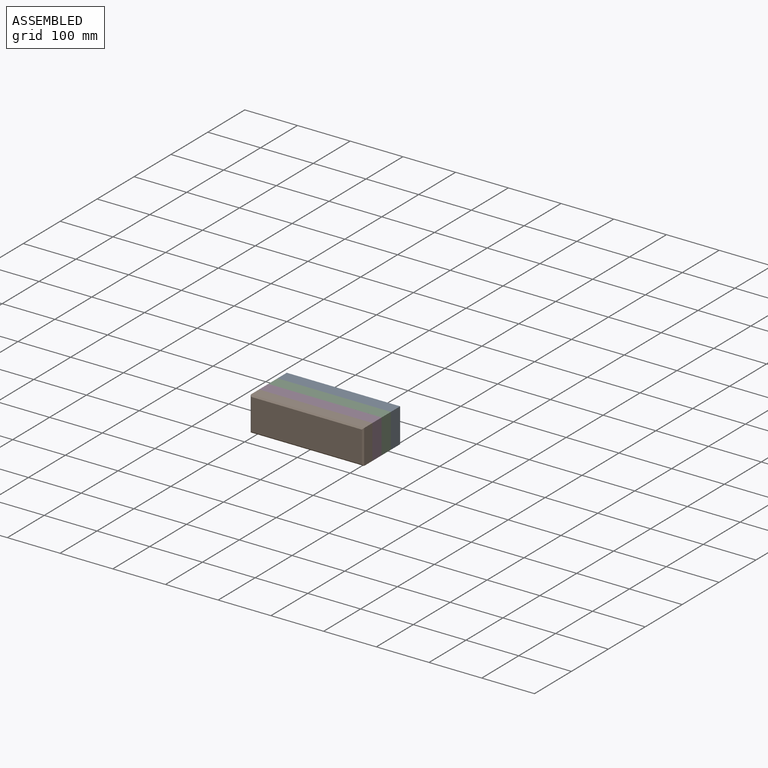
[diagram: assembled view]
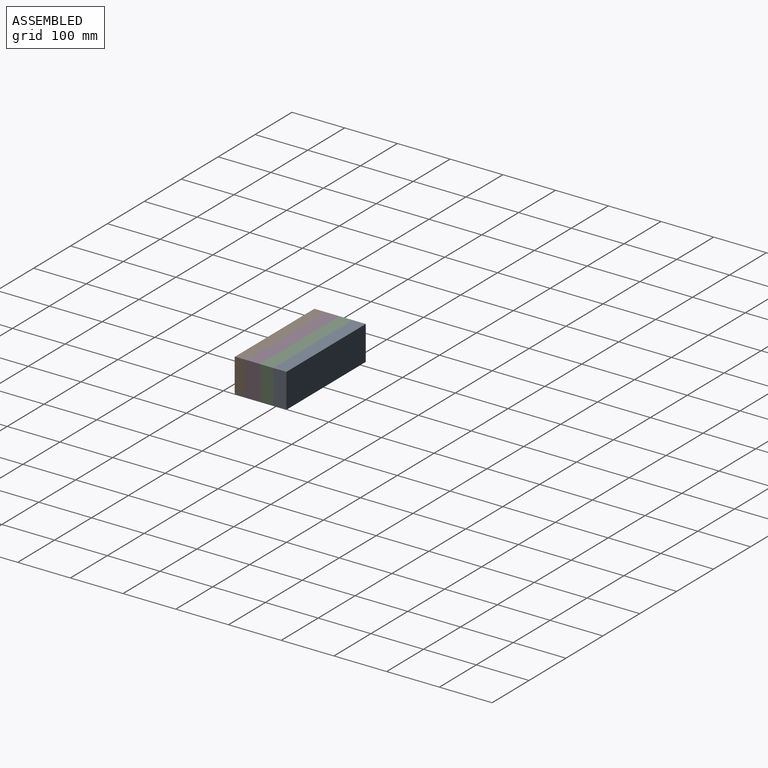
[diagram: assembled view, second angle]
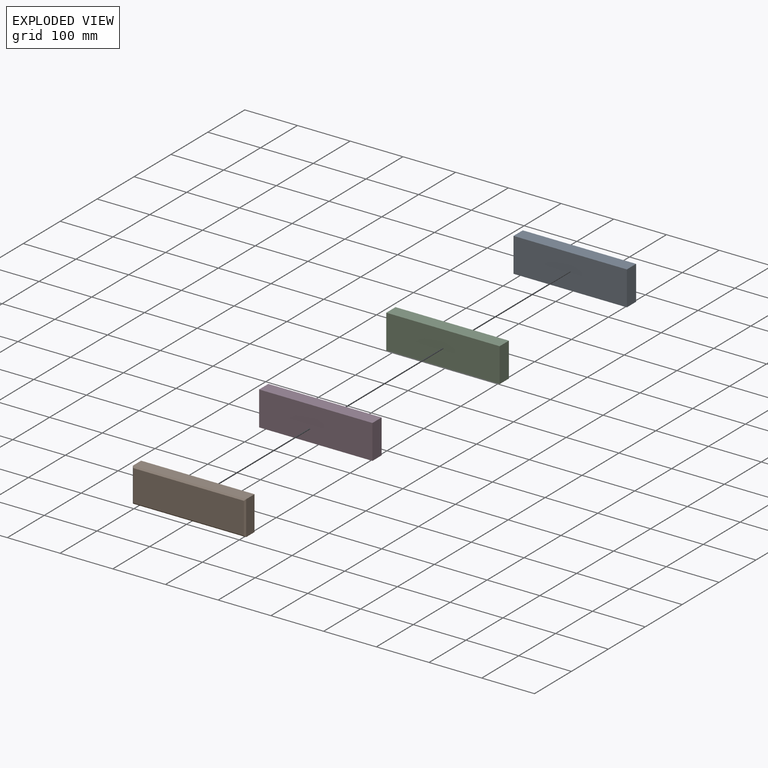
[diagram: exploded view]
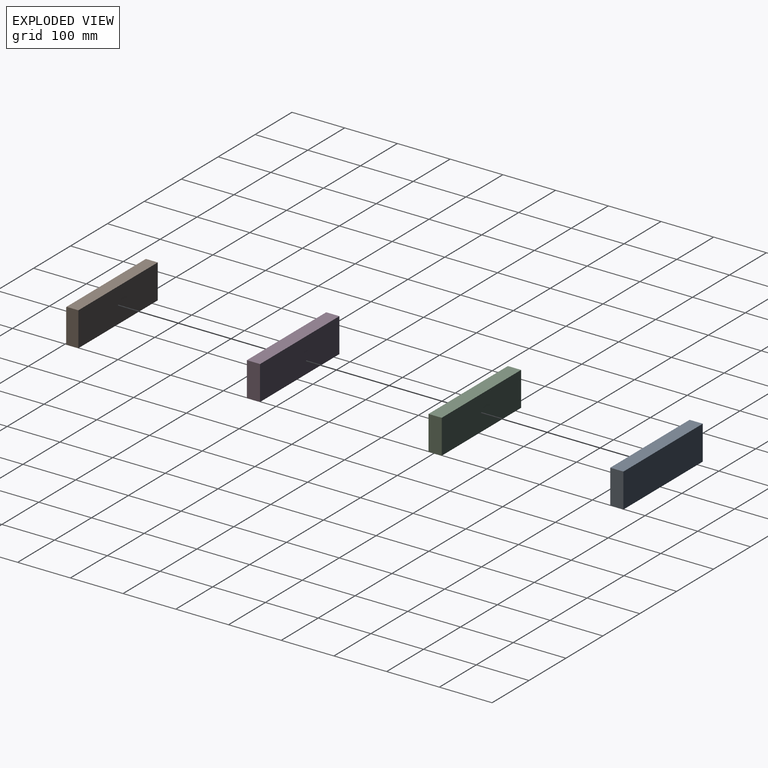
[diagram: exploded view, second angle]
ASSEMBLY  parts=4 mates=3
PART A: 6 faces, bbox 215x25x65 mm
  f0: plane 215x25mm, normal (0,0,-1), area 5375mm2, adj f1,f3,f4,f5
  f1: plane 65x25mm, normal (1,0,0), area 1625mm2, adj f0,f2,f4,f5
  f2: plane 215x25mm, normal (0,0,1), area 5375mm2, adj f1,f3,f4,f5
  f3: plane 65x25mm, normal (-1,0,0), area 1625mm2, adj f0,f2,f4,f5
  f4: plane 215x65mm, normal (0,-1,0), area 13975mm2, adj f0,f1,f2,f3
  f5: plane 215x65mm, normal (0,1,0), area 13975mm2, adj f0,f1,f2,f3
PART B: 10 faces, bbox 215x25x65 mm
  f0: plane 215x22.5mm, normal (0,0,-1), area 4837.5mm2, adj f1,f3,f5,f7
  f1: plane 65x22.5mm, normal (1,0,0), area 1462.5mm2, adj f0,f2,f5,f6
  f2: plane 215x22.5mm, normal (0,0,1), area 4837.5mm2, adj f1,f3,f5,f8
  f3: plane 65x22.5mm, normal (-1,0,0), area 1462.5mm2, adj f0,f2,f5,f9
  f4: plane 210x60mm, normal (0,-1,0), area 12600mm2, adj f6,f7,f8,f9
  f5: plane 215x65mm, normal (0,1,0), area 13975mm2, adj f0,f1,f2,f3
  f6: plane 65x2.5mm, normal (0.71,-0.71,0), area 221mm2, adj f1,f4,f7,f8
  f7: plane 215x2.5mm, normal (0,-0.71,-0.71), area 751.3mm2, adj f0,f4,f6,f9
  f8: plane 215x2.5mm, normal (0,-0.71,0.71), area 751.3mm2, adj f2,f4,f6,f9
  f9: plane 65x2.5mm, normal (-0.71,-0.71,0), area 221mm2, adj f3,f4,f7,f8
PART C: same geometry as A
PART D: same geometry as A
PLACE A t=(0,25,0)mm
PLACE B t=(0,-50,0)mm
PLACE C at identity
PLACE D t=(0,-25,0)mm
MATE fastened D.f5 <-> C.f4  axis (0,1,0) through (0,-25,0)mm
MATE fastened B.f5 <-> D.f4  axis (0,1,0) through (0,-50,0)mm
MATE fastened C.f5 <-> A.f4  axis (0,1,0) through (0,0,0)mm
